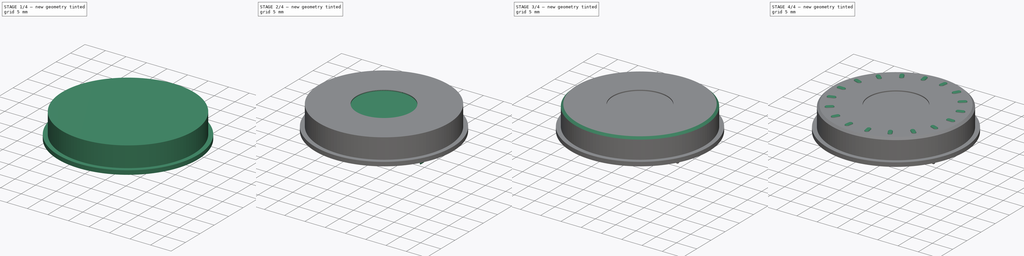
[diagram: build sequence overview — one tinted view per stage of 4, left to right]
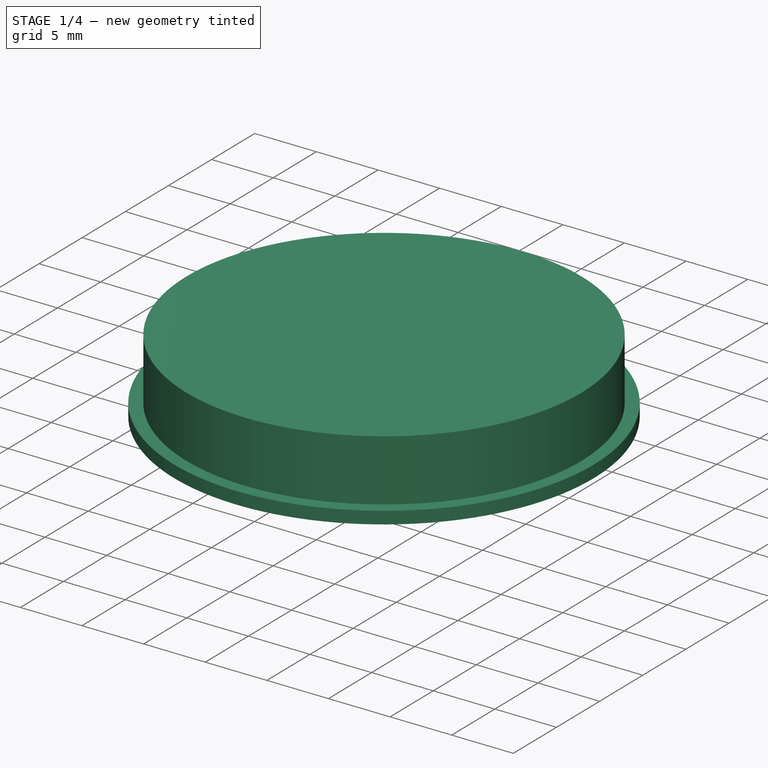
[diagram: stage 1 of 4 — iso view after this stage's code; geometry added in this stage tinted green]
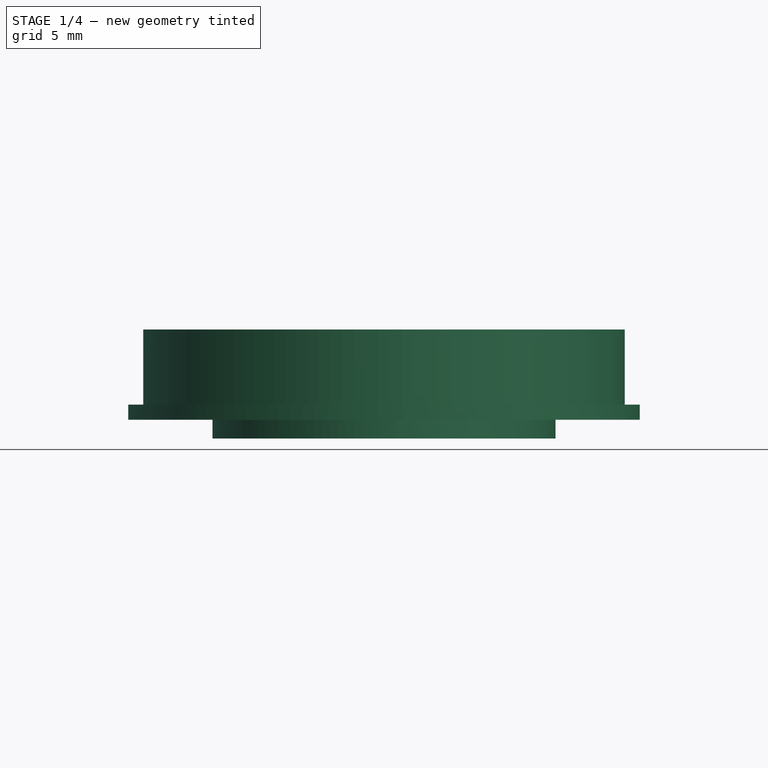
[diagram: stage 1 of 4 — front view after this stage's code; geometry added in this stage tinted green]
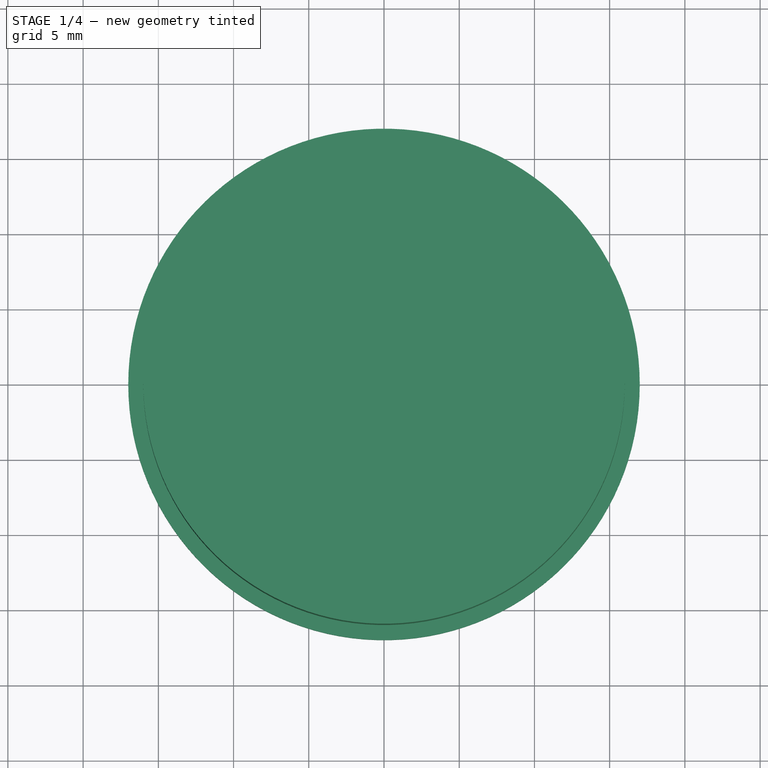
[diagram: stage 1 of 4 — top view after this stage's code; geometry added in this stage tinted green]
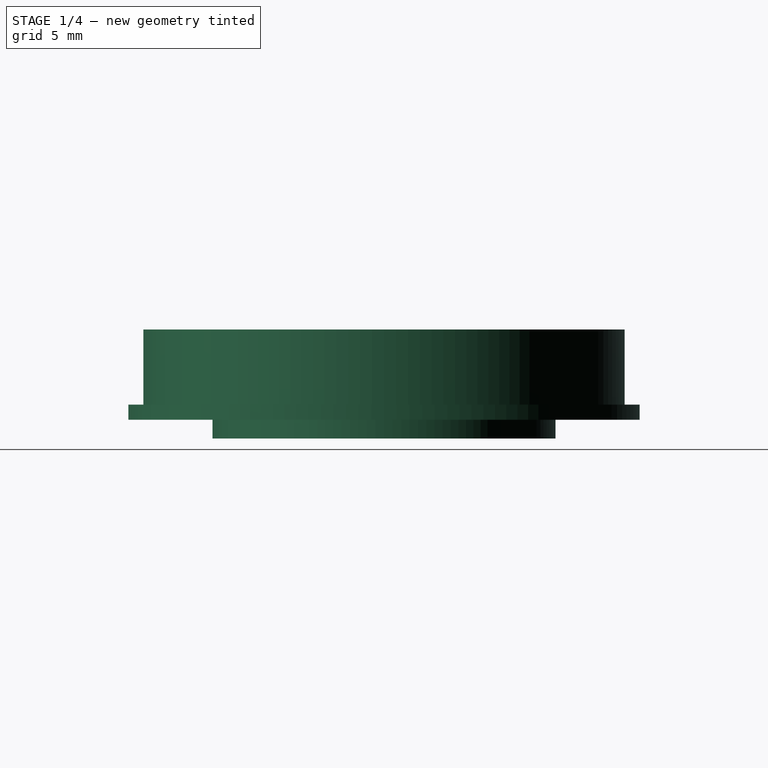
[diagram: stage 1 of 4 — right view after this stage's code; geometry added in this stage tinted green]
FCSTD DOCUMENT  (FreeCAD 0.16R6692 (Git))
Label: enc_a
License: All rights reserved
LicenseURL: http://en.wikipedia.org/wiki/All_rights_reserved
objects: Sketcher::SketchObject×7, PartDesign::Pad×6, PartDesign::Fillet×2, PartDesign::Chamfer×2, PartDesign::Pocket×1, PartDesign::PolarPattern×1
note: 26 computed .brp shape members not serialized (recipe doc carries the construction recipe); baked Part::Feature solids carry a one-line shape summary decoded from their .brp

FEATURE [Sketcher::SketchObject] Sketch
  sketch-geometry (1):
    g0: Circle CenterX=0 CenterY=0 CenterZ=0 NormalX=0 NormalY=0 NormalZ=1 Radius=11.4
  constraints (2):
    c: Radius(g0) = 11.4
    c: Coincident(g0,g-1)
FEATURE [PartDesign::Pad] Pad
  Length = 1.25
  Length2 = 100
  Sketch = -> Sketch
  Type = 0
FEATURE [Sketcher::SketchObject] Sketch001
  Placement = pos=(0,0,1.25) rot=(0,0,1;0rad)
  Support = -> Pad [Face3]
  sketch-geometry (1):
    g0: Circle CenterX=0 CenterY=0 CenterZ=0 NormalX=0 NormalY=0 NormalZ=1 Radius=17
  constraints (2):
    c: Radius(g0) = 17
    c: Coincident(g0,g-1)
FEATURE [PartDesign::Pad] Pad001
  Length = 1
  Length2 = 100
  Sketch = -> Sketch001
  Type = 0
FEATURE [Sketcher::SketchObject] Sketch002
  Placement = pos=(0,0,2.25) rot=(0,0,1;0rad)
  Support = -> Pad001 [Face5]
  sketch-geometry (1):
    g0: Circle CenterX=0 CenterY=0 CenterZ=0 NormalX=0 NormalY=0 NormalZ=1 Radius=16
  constraints (2):
    c: Radius(g0) = 16
    c: Coincident(g0,g-1)
FEATURE [PartDesign::Pad] Pad002
  Length = 5
  Length2 = 100
  Sketch = -> Sketch002
  Type = 0
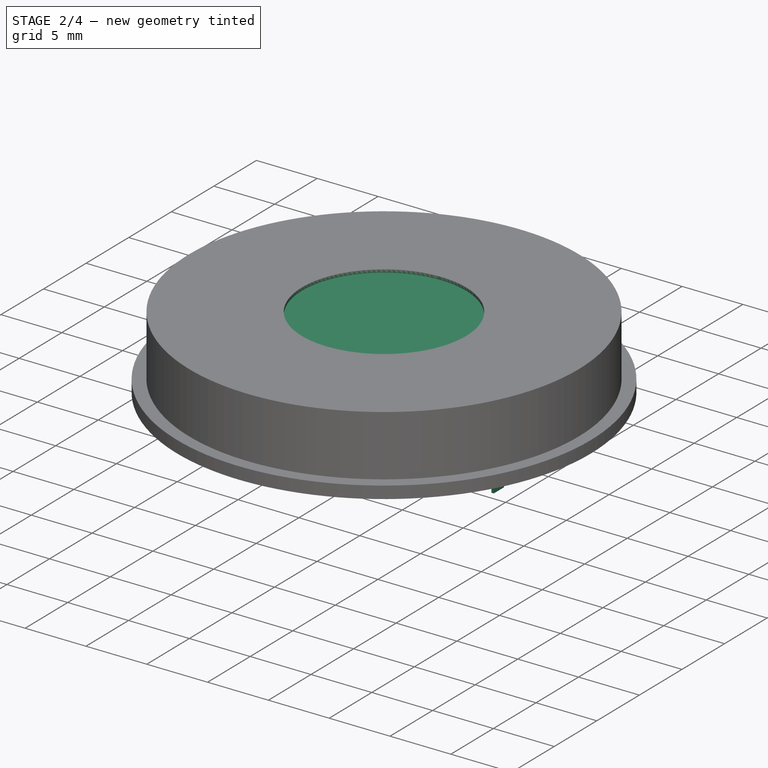
[diagram: stage 2 of 4 — iso view after this stage's code; geometry added in this stage tinted green]
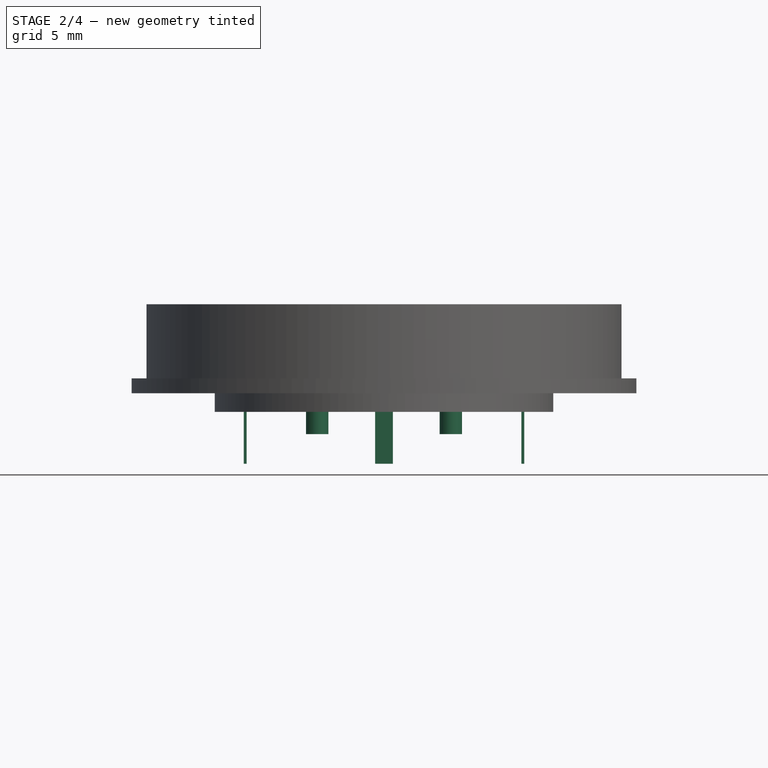
[diagram: stage 2 of 4 — front view after this stage's code; geometry added in this stage tinted green]
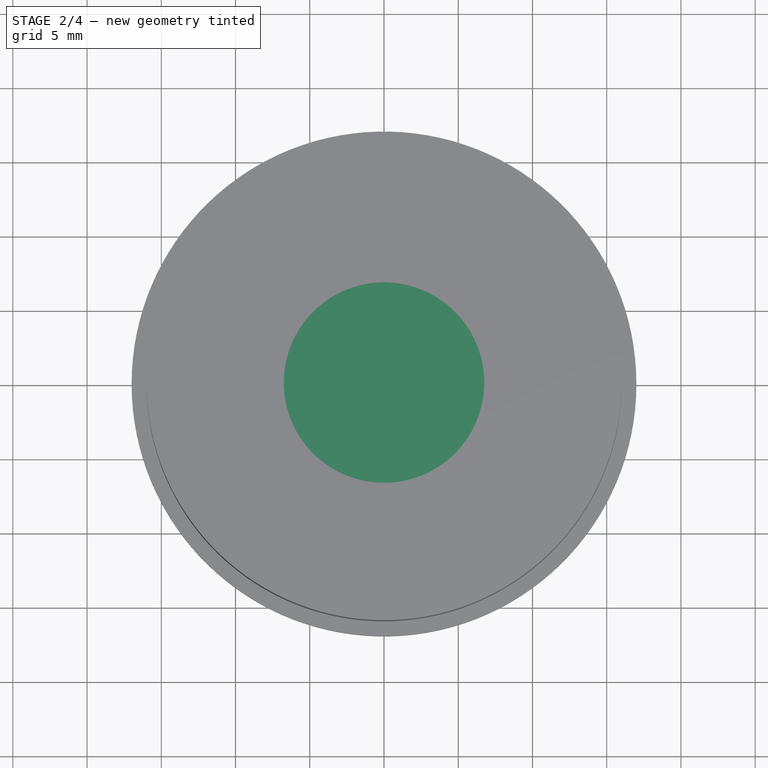
[diagram: stage 2 of 4 — top view after this stage's code; geometry added in this stage tinted green]
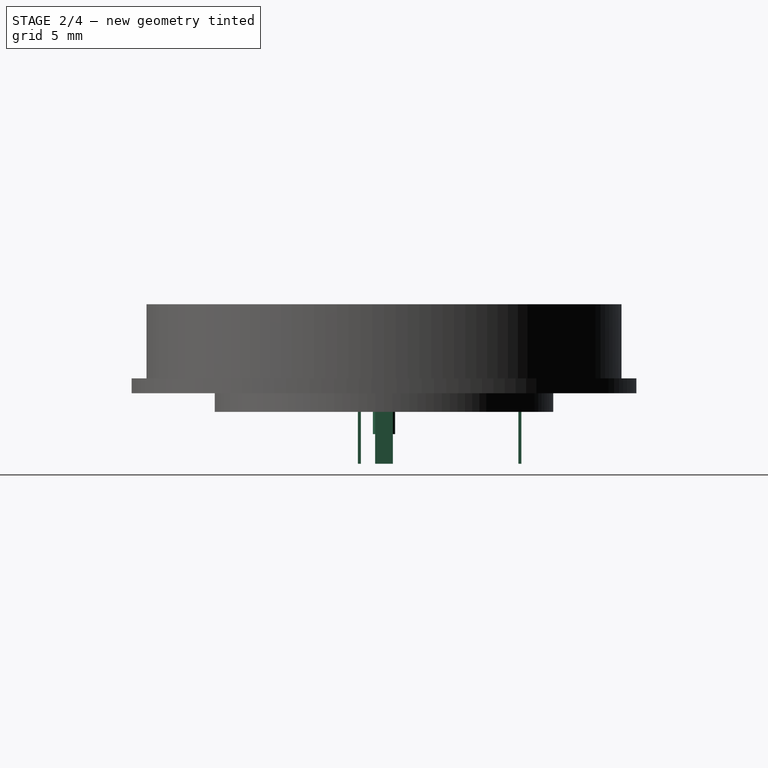
[diagram: stage 2 of 4 — right view after this stage's code; geometry added in this stage tinted green]
FEATURE [Sketcher::SketchObject] Sketch003
  Placement = pos=(0,0,7.25) rot=(0,0,1;0rad)
  Support = -> Pad002 [Face7]
  sketch-geometry (1):
    g0: Circle CenterX=0 CenterY=0 CenterZ=0 NormalX=0 NormalY=0 NormalZ=1 Radius=6.75
  constraints (2):
    c: Radius(g0) = 6.75
    c: Coincident(g0,g-1)
FEATURE [PartDesign::Pocket] Pocket
  Length = 0.25
  Sketch = -> Sketch003
  Type = 0
FEATURE [Sketcher::SketchObject] Sketch004
  Placement = pos=(0,0,0) rot=(1,0,0;3.14159rad)
  Support = -> Pocket [Face1]
  sketch-geometry (2):
    g0: Circle CenterX=-4.5 CenterY=0 CenterZ=0 NormalX=0 NormalY=0 NormalZ=1 Radius=0.75
    g1: Circle CenterX=4.5 CenterY=0 CenterZ=0 NormalX=0 NormalY=0 NormalZ=1 Radius=0.75
  constraints (5):
    c: Equal(g1,g0)
    c: Symmetric(g0,g1,g-2)
    c: DistanceX(g0,g-1) = 4.5
    c: Radius(g0) = 0.75
    c: DistanceY(g-1,g0) = 0
FEATURE [PartDesign::Pad] Pad003
  Length = 1.5
  Length2 = 100
  Sketch = -> Sketch004
  Type = 0
FEATURE [Sketcher::SketchObject] Sketch005
  Placement = pos=(0,0,0) rot=(1,0,0;3.14159rad)
  Support = -> Pad003 [Face2]
  sketch-geometry (16):
    g0: LineSegment StartX=-9.45 StartY=0.6 StartZ=0 EndX=-9.25 EndY=0.6 EndZ=0
    g1: LineSegment StartX=-9.25 StartY=0.6 StartZ=0 EndX=-9.25 EndY=-0.6 EndZ=0
    g2: LineSegment StartX=-9.25 StartY=-0.6 StartZ=0 EndX=-9.45 EndY=-0.6 EndZ=0
    g3: LineSegment StartX=-9.45 StartY=-0.6 StartZ=0 EndX=-9.45 EndY=0.6 EndZ=0
    g4: LineSegment StartX=9.25 StartY=0.6 StartZ=0 EndX=9.45 EndY=0.6 EndZ=0
    g5: LineSegment StartX=9.45 StartY=0.6 StartZ=0 EndX=9.45 EndY=-0.6 EndZ=0
    g6: LineSegment StartX=9.45 StartY=-0.6 StartZ=0 EndX=9.25 EndY=-0.6 EndZ=0
    g7: LineSegment StartX=9.25 StartY=-0.6 StartZ=0 EndX=9.25 EndY=0.6 EndZ=0
    g8: LineSegment StartX=-0.6 StartY=-9.25 StartZ=0 EndX=0.6 EndY=-9.25 EndZ=0
    g9: LineSegment StartX=0.6 StartY=-9.25 StartZ=0 EndX=0.6 EndY=-9.05 EndZ=0
    g10: LineSegment StartX=0.6 StartY=-9.05 StartZ=0 EndX=-0.6 EndY=-9.05 EndZ=0
    g11: LineSegment StartX=-0.6 StartY=-9.05 StartZ=0 EndX=-0.6 EndY=-9.25 EndZ=0
    g12: LineSegment StartX=-0.6 StartY=1.76 StartZ=0 EndX=0.6 EndY=1.76 EndZ=0
    g13: LineSegment StartX=0.6 StartY=1.76 StartZ=0 EndX=0.6 EndY=1.56 EndZ=0
    g14: LineSegment StartX=0.6 StartY=1.56 StartZ=0 EndX=-0.6 EndY=1.56 EndZ=0
    g15: LineSegment StartX=-0.6 StartY=1.56 StartZ=0 EndX=-0.6 EndY=1.76 EndZ=0
  constraints (47):
    c: Coincident(g0,g1)
    c: Coincident(g1,g2)
    c: Coincident(g2,g3)
    c: Coincident(g3,g0)
    c: Horizontal(g0)
    c: Horizontal(g2)
    c: Vertical(g1)
    c: Vertical(g3)
    c: Coincident(g4,g5)
    c: Coincident(g5,g6)
    c: Coincident(g6,g7)
    c: Coincident(g7,g4)
    c: Horizontal(g4)
    c: Horizontal(g6)
    c: Vertical(g5)
    c: Vertical(g7)
    c: Coincident(g8,g9)
    c: Coincident(g9,g10)
    c: Coincident(g10,g11)
    c: Coincident(g11,g8)
    c: Horizontal(g8)
    c: Horizontal(g10)
    c: Vertical(g9)
    c: Vertical(g11)
    c: Coincident(g12,g13)
    c: Coincident(g13,g14)
    c: Coincident(g14,g15)
    c: Coincident(g15,g12)
    c: Horizontal(g12)
    c: Horizontal(g14)
    c: Vertical(g13)
    c: Vertical(g15)
    c: Equal(g3,g12)
    c: Equal(g12,g7)
    c: Equal(g7,g8)
    c: Equal(g4,g15)
    c: Equal(g15,g0)
    c: Equal(g0,g11)
    c: Symmetric(g0,g4,g-2)
    c: Symmetric(g8,g8,g-2)
    c: Symmetric(g14,g13,g-2)
    c: DistanceY(g3,g3) = 1.2
    c: DistanceX(g0,g0) = 0.2
    c: DistanceX(g0,g-1) = 9.25
    c: DistanceY(g8,g-1) = 9.25
    c: DistanceY(g-1,g13) = 1.56
    c: Symmetric(g0,g1,g-1)
FEATURE [PartDesign::Pad] Pad004
  Length = 3.5
  Length2 = 100
  Sketch = -> Sketch005
  Type = 0
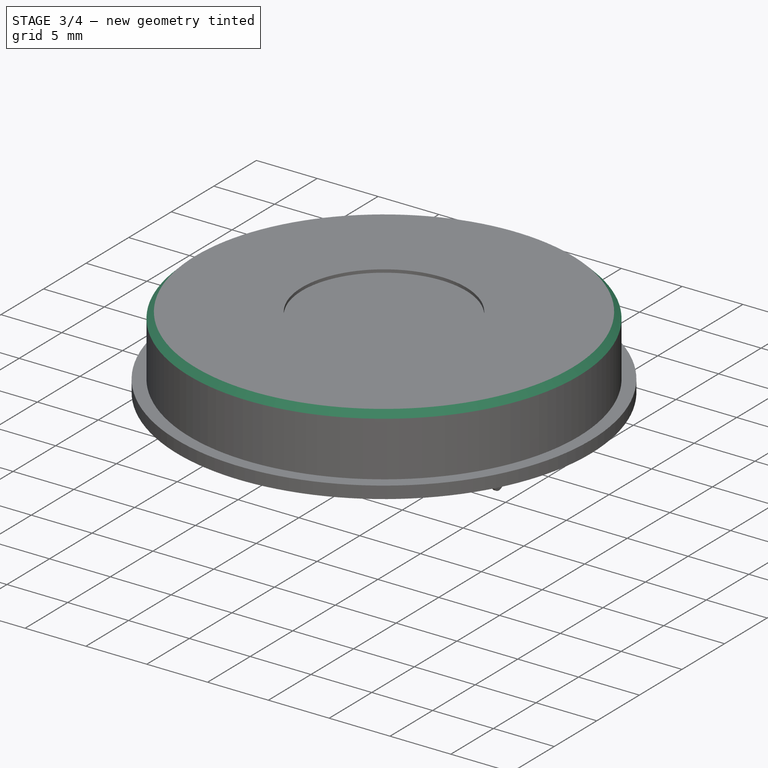
[diagram: stage 3 of 4 — iso view after this stage's code; geometry added in this stage tinted green]
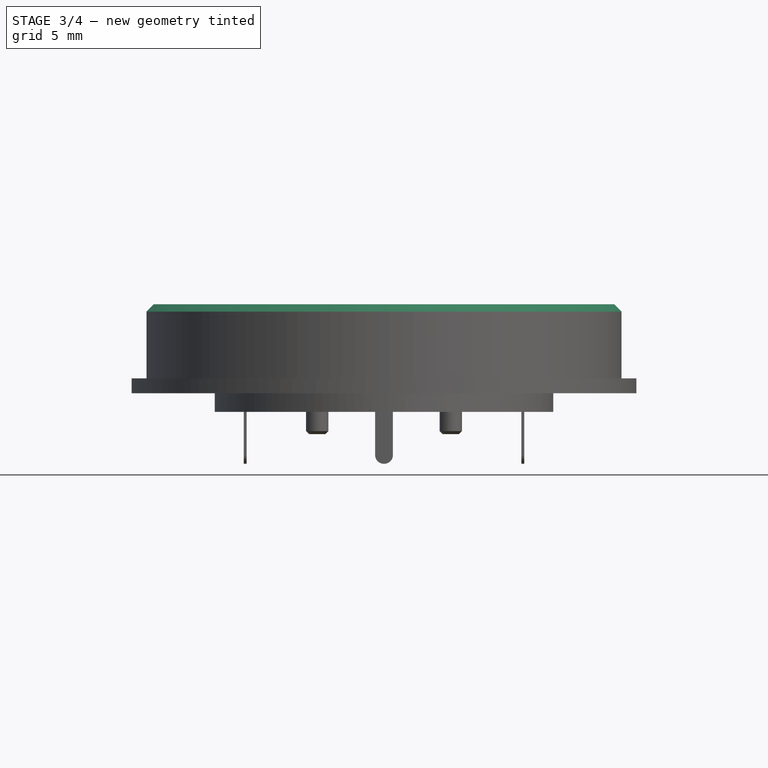
[diagram: stage 3 of 4 — front view after this stage's code; geometry added in this stage tinted green]
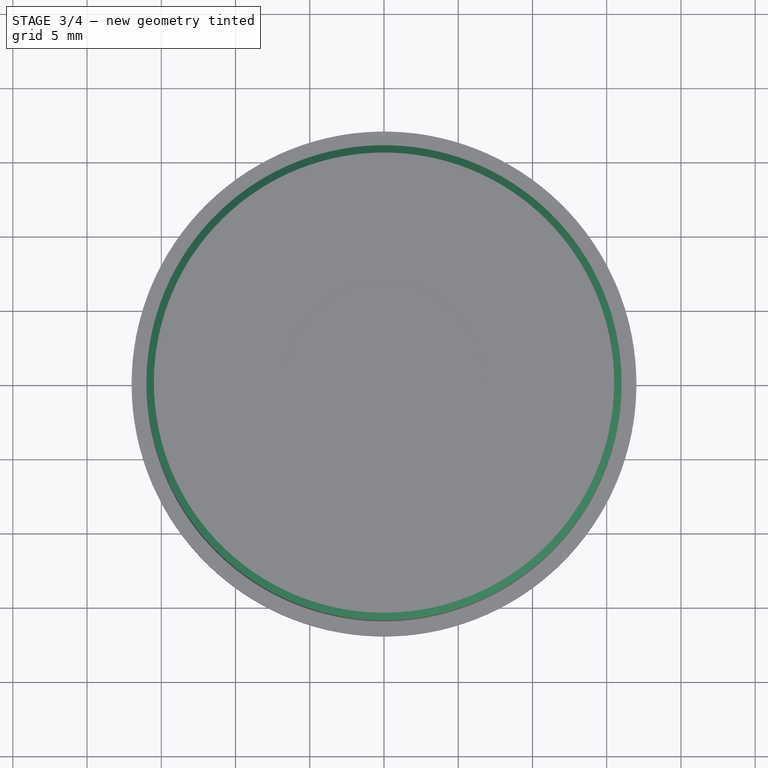
[diagram: stage 3 of 4 — top view after this stage's code; geometry added in this stage tinted green]
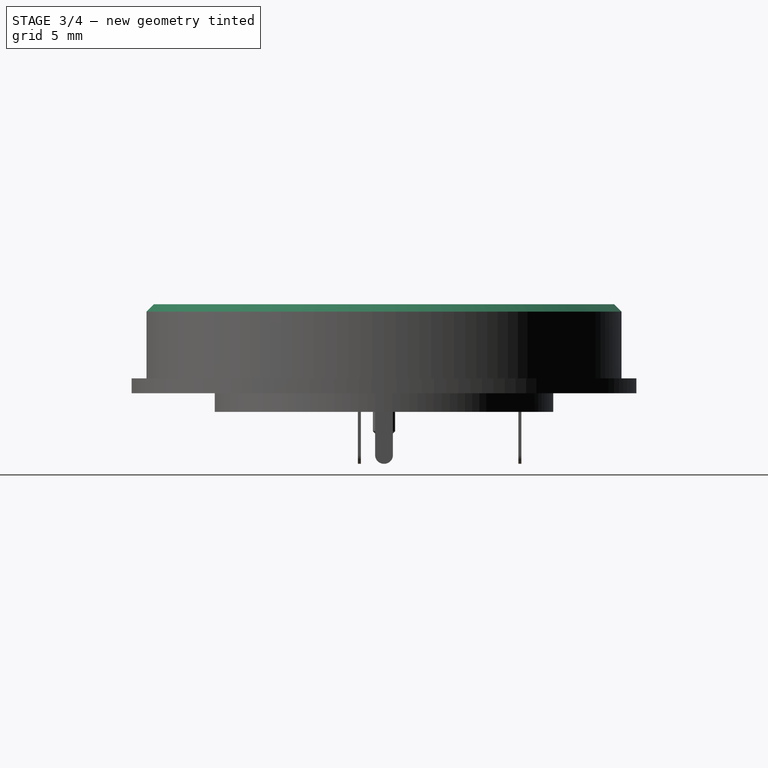
[diagram: stage 3 of 4 — right view after this stage's code; geometry added in this stage tinted green]
FEATURE [PartDesign::Fillet] Fillet
  Base = -> Pad004 [Edge50,Edge55,Edge26,Edge31,Edge40,Edge37,Edge48,Edge44]
  Radius = 0.59
FEATURE [PartDesign::Chamfer] Chamfer
  Base = -> Fillet [Edge75,Edge37]
  Size = 0.2
FEATURE [PartDesign::Chamfer] Chamfer001
  Base = -> Chamfer [Edge91]
  Size = 0.5
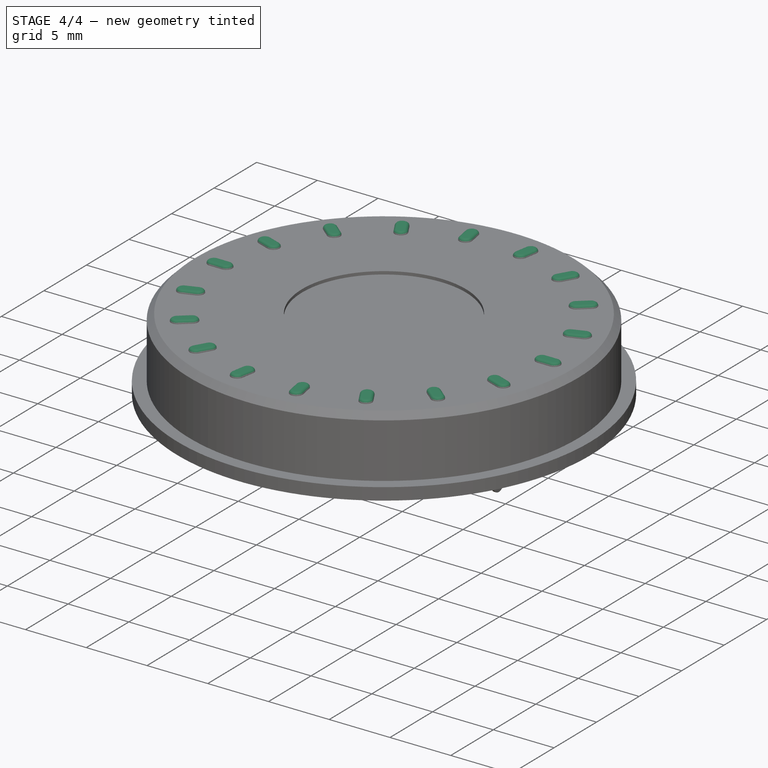
[diagram: stage 4 of 4 — iso view after this stage's code; geometry added in this stage tinted green]
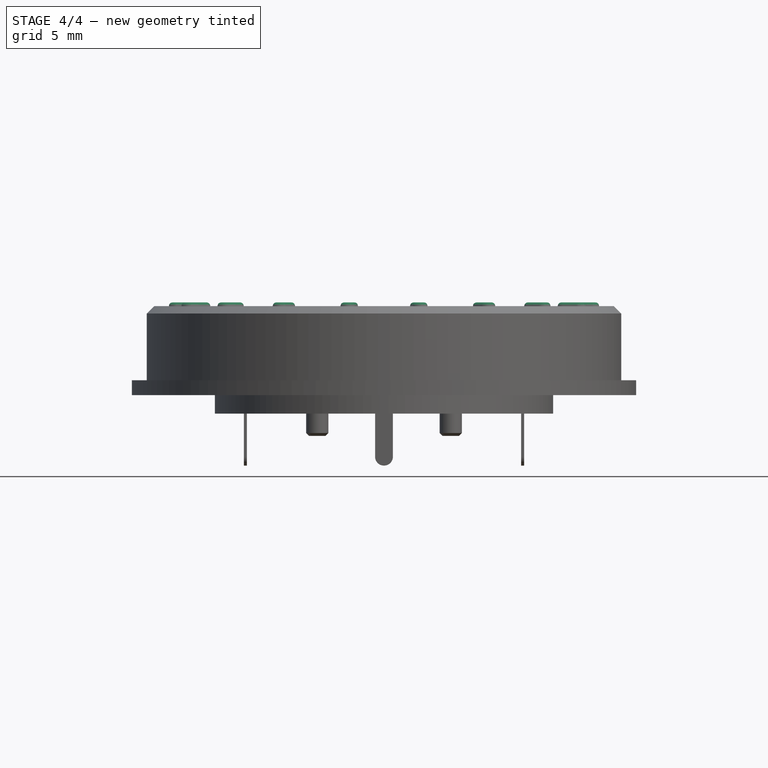
[diagram: stage 4 of 4 — front view after this stage's code; geometry added in this stage tinted green]
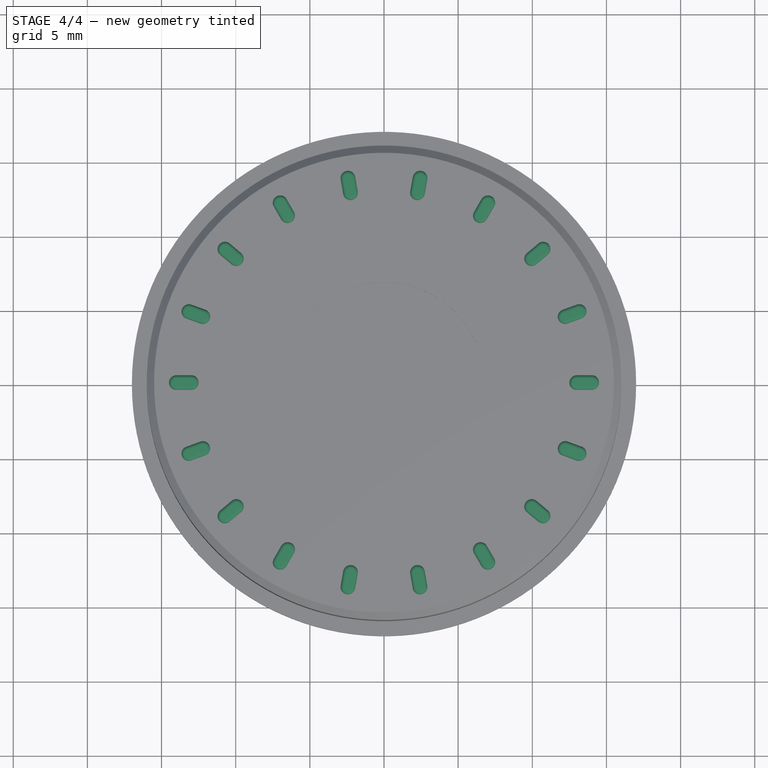
[diagram: stage 4 of 4 — top view after this stage's code; geometry added in this stage tinted green]
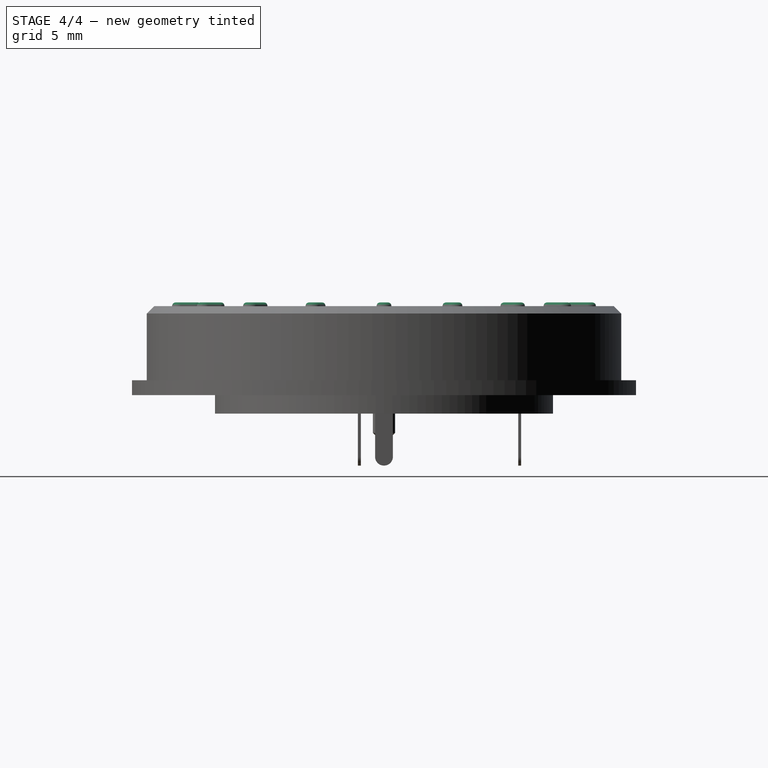
[diagram: stage 4 of 4 — right view after this stage's code; geometry added in this stage tinted green]
FEATURE [Sketcher::SketchObject] Sketch006
  Placement = pos=(0,0,7.25) rot=(0,0,1;0rad)
  Support = -> Chamfer001 [Face4]
  sketch-geometry (4):
    g0: ArcOfCircle CenterX=13 CenterY=0 CenterZ=0 NormalX=0 NormalY=0 NormalZ=1 Radius=0.5 StartAngle=1.5708 EndAngle=4.71239
    g1: ArcOfCircle CenterX=14 CenterY=0 CenterZ=0 NormalX=0 NormalY=0 NormalZ=1 Radius=0.5 StartAngle=4.71239 EndAngle=7.85398
    g2: LineSegment StartX=13 StartY=-0.5 StartZ=0 EndX=14 EndY=-0.5 EndZ=0
    g3: LineSegment StartX=13 StartY=0.5 StartZ=0 EndX=14 EndY=0.5 EndZ=0
  constraints (10):
    c: Tangent(g0,g3) = 1.5708
    c: Tangent(g0,g2) = -1.5708
    c: Tangent(g2,g1) = -1.5708
    c: Tangent(g3,g1) = 1.5708
    c: Horizontal(g2)
    c: Equal(g0,g1)
    c: Radius(g1) = 0.5
    c: DistanceX(g0,g1) = 1
    c: DistanceX(g-1,g0) = 13
    c: DistanceY(g-1,g0) = 0
FEATURE [PartDesign::Pad] Pad005
  Length = 0.25
  Length2 = 100
  Sketch = -> Sketch006
  Type = 0
FEATURE [PartDesign::PolarPattern] PolarPattern
  Angle = 360
  Axis = -> Sketch006 [N_Axis]
  Occurrences = 18
  Originals = -> [Pad005]
FEATURE [PartDesign::Fillet] Fillet001
  Base = -> PolarPattern [Edge2,Edge1,Edge4,Edge3,Edge122,Edge124,Edge118,Edge121,Edge136,Edge138,Edge141,Edge142,Edge206,Edge200,Edge203,Edge205,Edge195,Edge196,Edge198,Edge192,Edge208,Edge211,Edge213,Edge214,Edge216,Edge219,Edge221,Edge222,Edge102,Edge105,Edge107,Edge108,Edge110,Edge113,Edge115,Edge116,Edge98,Edge100,Edge94,Edge97,+32 more]
  Radius = 0.24
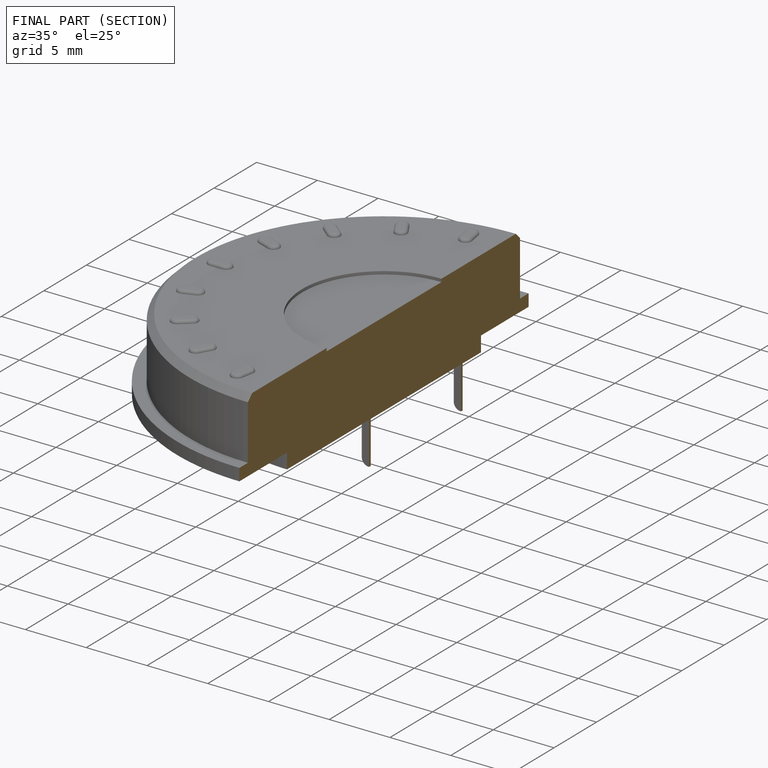
[diagram: finished part — half-section view (interior)]
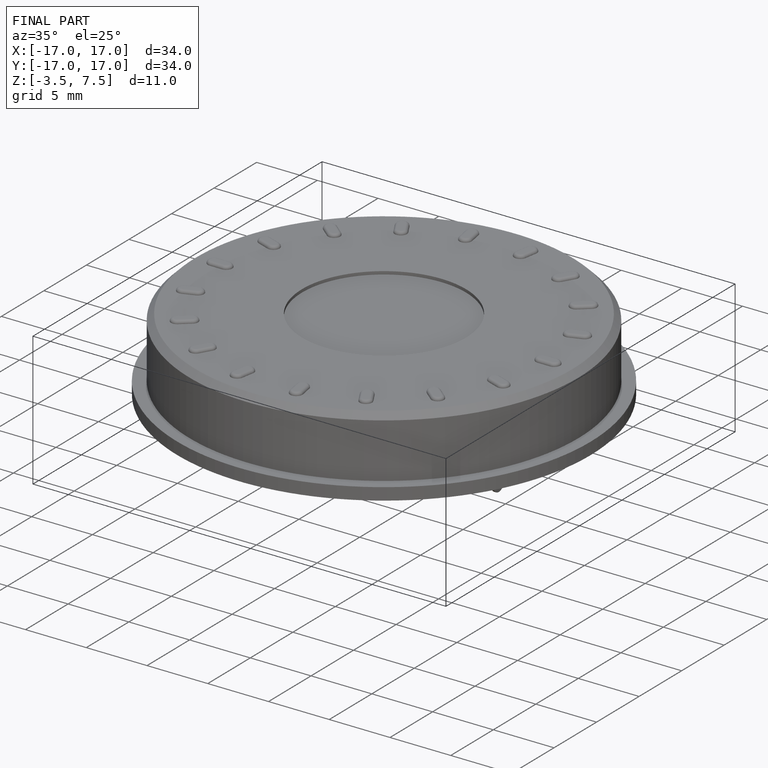
[diagram: finished part — iso view with bounding-box wireframe]
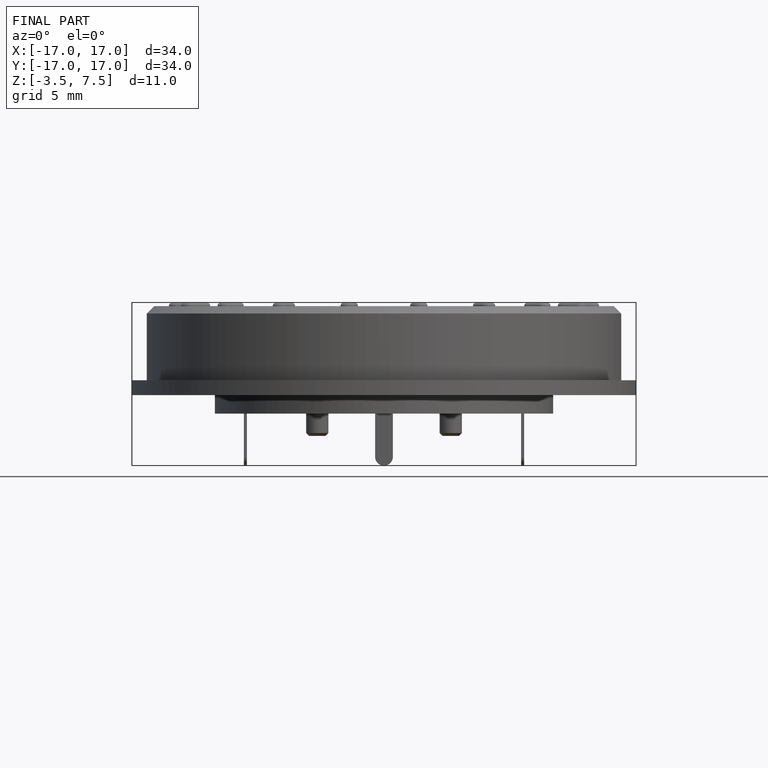
[diagram: finished part — front view with bounding-box wireframe]
